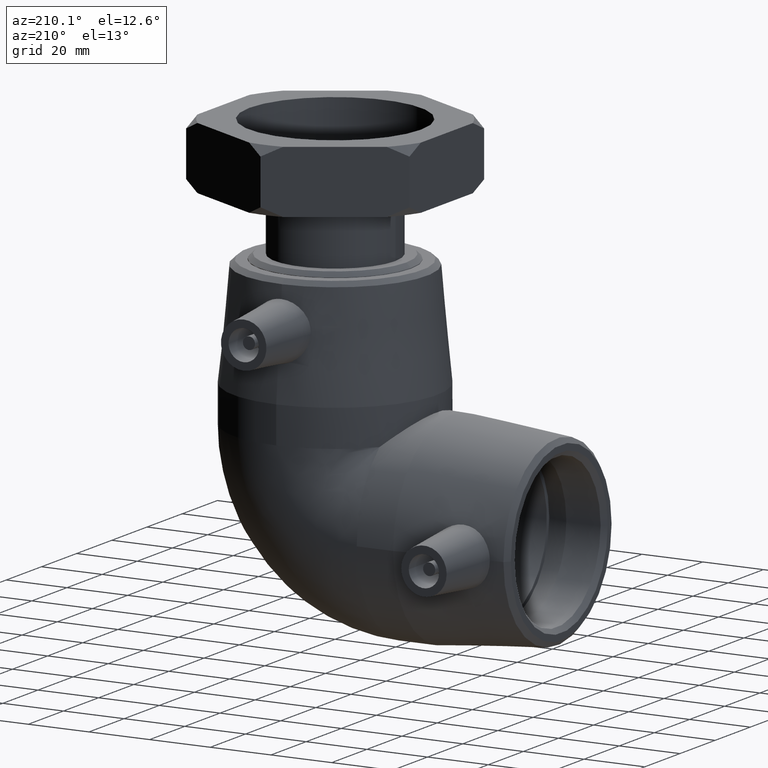
[diagram: clean part render]
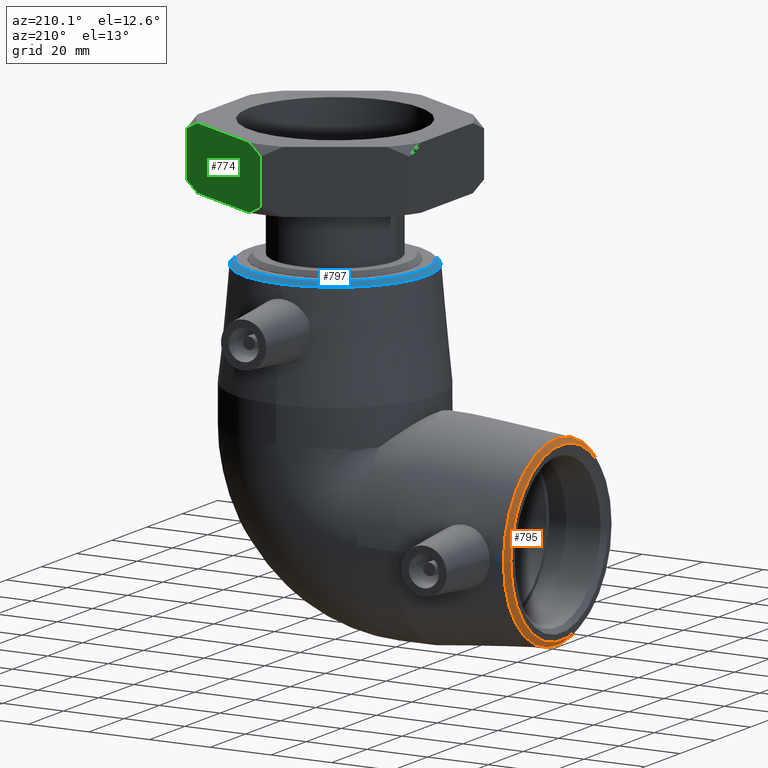
[diagram: same view with three faces highlighted in distinct colors, each labeled with its STEP entity id]
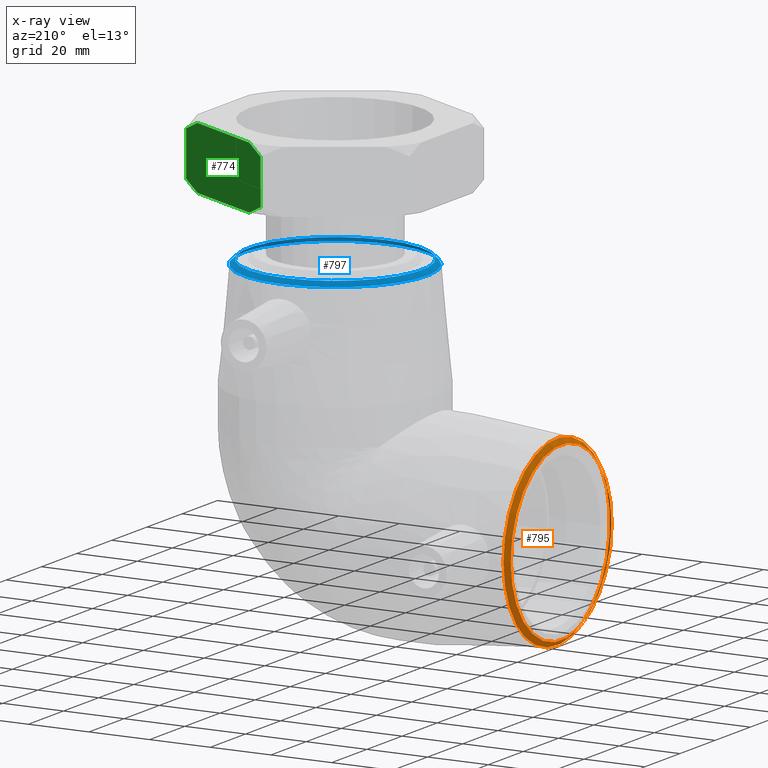
[diagram: x-ray of the same camera — body ghosted, the three highlighted faces saturated]
A machine part, auxiliary view with three faces highlighted in distinct colors.
The next image is the same camera in x-ray (body ghosted, the three faces saturated) — at least one of them is partly hidden behind the body in this view.
Their STEP definitions:

[orange] entity #795 — the highlighted conical surface has half-angle 47.658 deg.
#128=FACE_BOUND('',#261,.T.);
#188=FACE_OUTER_BOUND('',#260,.T.);
#260=EDGE_LOOP('',(#678));
#261=EDGE_LOOP('',(#679));
#346=CIRCLE('',#882,28.65);
#348=CIRCLE('',#886,30.2889828806518);
#422=VERTEX_POINT('',#1379);
#424=VERTEX_POINT('',#1385);
#518=EDGE_CURVE('',#422,#422,#346,.T.);
#520=EDGE_CURVE('',#424,#424,#348,.T.);
#678=ORIENTED_EDGE('',*,*,#518,.T.);
#679=ORIENTED_EDGE('',*,*,#520,.T.);
#759=CONICAL_SURFACE('',#885,29.4694914403259,47.6581902132784);
#795=ADVANCED_FACE('',(#188,#128),#759,.T.);
#882=AXIS2_PLACEMENT_3D('',#1380,#1066,#1067);
#885=AXIS2_PLACEMENT_3D('',#1384,#1072,#1073);
#886=AXIS2_PLACEMENT_3D('',#1386,#1074,#1075);
#1066=DIRECTION('center_axis',(1.,-1.86279030977375E-18,0.));
#1067=DIRECTION('ref_axis',(-1.86279030977375E-18,-1.,0.));
#1072=DIRECTION('center_axis',(1.,-5.48037672270184E-33,-1.2417853820964E-15));
#1073=DIRECTION('ref_axis',(-9.05494797612765E-19,-1.,-3.14675484045348E-17));
#1074=DIRECTION('center_axis',(-1.,0.,0.));
#1075=DIRECTION('ref_axis',(0.,-1.,-6.12323399573677E-17));
#1379=CARTESIAN_POINT('',(-74.5,28.65,3.50861307955717E-15));
#1380=CARTESIAN_POINT('Origin',(-74.5,8.18520226364575E-33,0.));
#1384=CARTESIAN_POINT('Origin',(-73.7532263129157,4.09260113182288E-33,
-9.2733264835548E-16));
#1385=CARTESIAN_POINT('',(-73.0064526258315,30.2889828806518,-3.70933059342192E-15));
#1386=CARTESIAN_POINT('Origin',(-73.0064526258315,0.,-1.85466529671096E-15));

[blue] entity #797 — the highlighted conical surface has half-angle 47.658 deg.
#131=FACE_BOUND('',#266,.T.);
#190=FACE_OUTER_BOUND('',#265,.T.);
#265=EDGE_LOOP('',(#683));
#266=EDGE_LOOP('',(#684));
#350=CIRCLE('',#890,28.65);
#351=CIRCLE('',#891,30.2889828806518);
#427=VERTEX_POINT('',#1426);
#428=VERTEX_POINT('',#1428);
#523=EDGE_CURVE('',#427,#427,#350,.T.);
#524=EDGE_CURVE('',#428,#428,#351,.T.);
#683=ORIENTED_EDGE('',*,*,#523,.T.);
#684=ORIENTED_EDGE('',*,*,#524,.T.);
#761=CONICAL_SURFACE('',#889,29.4694914403259,47.6581902132784);
#797=ADVANCED_FACE('',(#190,#131),#761,.T.);
#889=AXIS2_PLACEMENT_3D('',#1425,#1080,#1081);
#890=AXIS2_PLACEMENT_3D('',#1427,#1082,#1083);
#891=AXIS2_PLACEMENT_3D('',#1429,#1084,#1085);
#1080=DIRECTION('center_axis',(-1.18055304213903E-15,-5.48037672270184E-33,
-1.));
#1081=DIRECTION('ref_axis',(-3.14675484045348E-17,-1.,9.05494797612765E-19));
#1082=DIRECTION('center_axis',(6.12323399573677E-17,-1.86279030977375E-18,
-1.));
#1083=DIRECTION('ref_axis',(-1.14063009517357E-34,-1.,1.86279030977375E-18));
#1084=DIRECTION('center_axis',(0.,0.,1.));
#1085=DIRECTION('ref_axis',(-6.12323399573676E-17,-1.,0.));
#1425=CARTESIAN_POINT('Origin',(-5.44341527490061E-15,4.09260113182288E-33,
73.7532263129157));
#1426=CARTESIAN_POINT('',(-1.05319624726672E-15,28.65,74.5));
#1427=CARTESIAN_POINT('Origin',(-4.56180932682389E-15,8.18520226364575E-33,
74.5));
#1428=CARTESIAN_POINT('',(-8.17968651968829E-15,30.2889828806518,73.0064526258315));
#1429=CARTESIAN_POINT('Origin',(-6.32502122297733E-15,0.,73.0064526258315));

[green] entity #774 — the highlighted planar face has unit normal (0.5, 0.866, -0).
#29=LINE('',#1276,#47);
#33=LINE('',#1307,#51);
#35=LINE('',#1323,#53);
#36=LINE('',#1331,#54);
#47=VECTOR('',#976,14.8344);
#51=VECTOR('',#982,14.8344);
#53=VECTOR('',#986,29.5753002784419);
#54=VECTOR('',#987,29.5753002784416);
#75=(
BOUNDED_CURVE()
B_SPLINE_CURVE(2,(#1315,#1316,#1317),.UNSPECIFIED.,.F.,.F.)
B_SPLINE_CURVE_WITH_KNOTS((3,3),(0.,0.705481604635411),.UNSPECIFIED.)
CURVE()
GEOMETRIC_REPRESENTATION_ITEM()
RATIONAL_B_SPLINE_CURVE((1.,1.00310458904752,1.))
REPRESENTATION_ITEM('')
);
#76=(
BOUNDED_CURVE()
B_SPLINE_CURVE(2,(#1319,#1320,#1321),.UNSPECIFIED.,.F.,.F.)
B_SPLINE_CURVE_WITH_KNOTS((3,3),(0.,0.705481604635404),.UNSPECIFIED.)
CURVE()
GEOMETRIC_REPRESENTATION_ITEM()
RATIONAL_B_SPLINE_CURVE((1.,1.00310458904731,1.))
REPRESENTATION_ITEM('')
);
#77=(
BOUNDED_CURVE()
B_SPLINE_CURVE(2,(#1324,#1325,#1326),.UNSPECIFIED.,.F.,.F.)
B_SPLINE_CURVE_WITH_KNOTS((3,3),(0.,0.705481604635405),.UNSPECIFIED.)
CURVE()
GEOMETRIC_REPRESENTATION_ITEM()
RATIONAL_B_SPLINE_CURVE((1.,1.00310458904724,1.))
REPRESENTATION_ITEM('')
);
#78=(
BOUNDED_CURVE()
B_SPLINE_CURVE(2,(#1328,#1329,#1330),.UNSPECIFIED.,.F.,.F.)
B_SPLINE_CURVE_WITH_KNOTS((3,3),(0.,0.705481604635412),.UNSPECIFIED.)
CURVE()
GEOMETRIC_REPRESENTATION_ITEM()
RATIONAL_B_SPLINE_CURVE((1.,1.00310458904739,1.))
REPRESENTATION_ITEM('')
);
#100=PLANE('',#842);
#167=FACE_OUTER_BOUND('',#231,.T.);
#231=EDGE_LOOP('',(#596,#597,#598,#599,#600,#601,#602,#603));
#398=VERTEX_POINT('',#1270);
#400=VERTEX_POINT('',#1275);
#407=VERTEX_POINT('',#1302);
#408=VERTEX_POINT('',#1306);
#410=VERTEX_POINT('',#1314);
#411=VERTEX_POINT('',#1318);
#412=VERTEX_POINT('',#1322);
#413=VERTEX_POINT('',#1327);
#479=EDGE_CURVE('',#400,#398,#29,.T.);
#489=EDGE_CURVE('',#408,#407,#33,.T.);
#492=EDGE_CURVE('',#408,#410,#75,.T.);
#493=EDGE_CURVE('',#411,#407,#76,.T.);
#494=EDGE_CURVE('',#412,#411,#35,.T.);
#495=EDGE_CURVE('',#400,#412,#77,.T.);
#496=EDGE_CURVE('',#413,#398,#78,.T.);
#497=EDGE_CURVE('',#410,#413,#36,.T.);
#596=ORIENTED_EDGE('',*,*,#492,.F.);
#597=ORIENTED_EDGE('',*,*,#489,.T.);
#598=ORIENTED_EDGE('',*,*,#493,.F.);
#599=ORIENTED_EDGE('',*,*,#494,.F.);
#600=ORIENTED_EDGE('',*,*,#495,.F.);
#601=ORIENTED_EDGE('',*,*,#479,.T.);
#602=ORIENTED_EDGE('',*,*,#496,.F.);
#603=ORIENTED_EDGE('',*,*,#497,.F.);
#774=ADVANCED_FACE('',(#167),#100,.T.);
#842=AXIS2_PLACEMENT_3D('',#1313,#984,#985);
#976=DIRECTION('',(2.3843715965104E-16,0.,1.));
#982=DIRECTION('',(-2.3843715965104E-16,0.,-1.));
#984=DIRECTION('center_axis',(0.499999999999999,0.866025403784439,-1.1921857982552E-16));
#985=DIRECTION('ref_axis',(0.866025403784439,-0.499999999999999,0.));
#986=DIRECTION('',(0.866025403784439,-0.499999999999999,-2.06492637464007E-16));
#987=DIRECTION('',(-0.866025403784439,0.499999999999999,2.06492637464007E-16));
#1270=CARTESIAN_POINT('',(-7.47955988021485E-15,42.492,112.6672));
#1275=CARTESIAN_POINT('',(-1.17643058799545E-14,42.492,97.8328));
#1276=CARTESIAN_POINT('',(-1.55431223447522E-14,42.492,105.25));
#1302=CARTESIAN_POINT('',(36.7991514576084,21.246,97.8328));
#1306=CARTESIAN_POINT('',(36.7991514576084,21.246,112.6672));
#1307=CARTESIAN_POINT('',(36.7991514576084,21.246,105.25));
#1313=CARTESIAN_POINT('Origin',(-1.35387599714356E-14,42.492,115.5));
#1314=CARTESIAN_POINT('',(31.2060564116459,24.4751749303896,115.5));
#1315=CARTESIAN_POINT('Ctrl Pts',(36.7991514576083,21.2460000000001,112.6672));
#1316=CARTESIAN_POINT('Ctrl Pts',(33.9061712614207,22.9162628950292,114.337462895029));
#1317=CARTESIAN_POINT('Ctrl Pts',(31.2060564116459,24.4751749303896,115.5));
#1318=CARTESIAN_POINT('',(31.206056411646,24.4751749303896,95.));
#1319=CARTESIAN_POINT('Ctrl Pts',(31.206056411646,24.4751749303896,95.));
#1320=CARTESIAN_POINT('Ctrl Pts',(33.9061712614209,22.9162628950291,96.1625371049709));
#1321=CARTESIAN_POINT('Ctrl Pts',(36.7991514576084,21.246,97.8328));
#1322=CARTESIAN_POINT('',(5.59309504596235,39.2628250696105,95.));
#1323=CARTESIAN_POINT('',(1.76368786440207,41.473734336721,95.));
#1324=CARTESIAN_POINT('Ctrl Pts',(-3.72072209243092E-14,42.492,97.8328));
#1325=CARTESIAN_POINT('Ctrl Pts',(2.89298019618738,40.821737104971,96.1625371049709));
#1326=CARTESIAN_POINT('Ctrl Pts',(5.59309504596236,39.2628250696105,95.));
#1327=CARTESIAN_POINT('',(5.59309504596245,39.2628250696104,115.5));
#1328=CARTESIAN_POINT('Ctrl Pts',(5.59309504596245,39.2628250696104,115.5));
#1329=CARTESIAN_POINT('Ctrl Pts',(2.89298019618762,40.8217371049708,114.337462895029));
#1330=CARTESIAN_POINT('Ctrl Pts',(1.93974039433054E-14,42.492,112.6672));
#1331=CARTESIAN_POINT('',(-6.73471213559794,46.3802878644021,115.5));